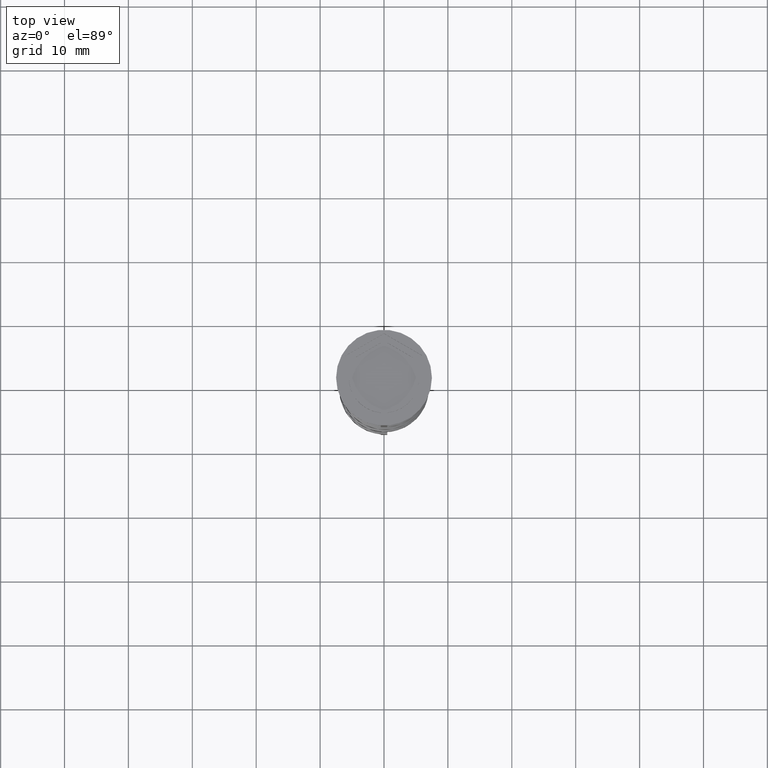
[diagram: clean part render]
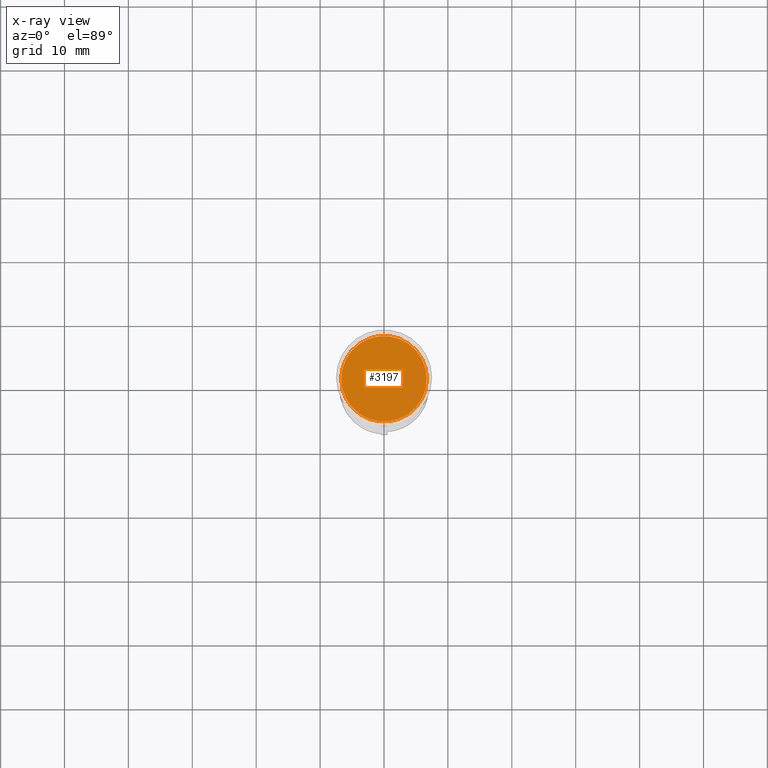
[diagram: x-ray — body ghosted, one internal face saturated and labeled with its STEP entity id]
A machine part, top view, then the same camera in x-ray: the body is ghosted and one INTERNAL B-rep face — a face not visible from any outside direction — is saturated and labeled: STEP entity #3197.
In plain terms, the highlighted planar face has unit normal (0, 0, -1).
Its self-contained STEP definition (entity closure, byte-faithful):
#57 = EDGE_CURVE ( 'NONE', #2261, #1136, #1935, .T. ) ;
#234 = FACE_OUTER_BOUND ( 'NONE', #2359, .T. ) ;
#391 = CARTESIAN_POINT ( 'NONE',  ( 0.000000000000000000, 0.000000000000000000, -10.50000000000000178 ) ) ;
#801 = CARTESIAN_POINT ( 'NONE',  ( 0.000000000000000000, 0.000000000000000000, -10.50000000000000178 ) ) ;
#815 = CIRCLE ( 'NONE', #1688, 6.700000000000001066 ) ;
#1090 = EDGE_CURVE ( 'NONE', #1136, #2261, #815, .T. ) ;
#1093 = PLANE ( 'NONE',  #2896 ) ;
#1136 = VERTEX_POINT ( 'NONE', #2478 ) ;
#1354 = DIRECTION ( 'NONE',  ( -1.000000000000000000, 0.000000000000000000, -0.000000000000000000 ) ) ;
#1553 = DIRECTION ( 'NONE',  ( -0.000000000000000000, -0.000000000000000000, 1.000000000000000000 ) ) ;
#1688 = AXIS2_PLACEMENT_3D ( 'NONE', #3398, #3376, #2761 ) ;
#1935 = CIRCLE ( 'NONE', #2219, 6.700000000000001066 ) ;
#2219 = AXIS2_PLACEMENT_3D ( 'NONE', #391, #1553, #2608 ) ;
#2261 = VERTEX_POINT ( 'NONE', #2799 ) ;
#2359 = EDGE_LOOP ( 'NONE', ( #3176, #3490 ) ) ;
#2478 = CARTESIAN_POINT ( 'NONE',  ( -6.700000000000001066, 0.000000000000000000, -10.50000000000000178 ) ) ;
#2608 = DIRECTION ( 'NONE',  ( -1.000000000000000000, 0.000000000000000000, 0.000000000000000000 ) ) ;
#2761 = DIRECTION ( 'NONE',  ( -1.000000000000000000, 0.000000000000000000, 0.000000000000000000 ) ) ;
#2799 = CARTESIAN_POINT ( 'NONE',  ( 6.700000000000001066, 8.388830574159370862E-16, -10.50000000000000178 ) ) ;
#2896 = AXIS2_PLACEMENT_3D ( 'NONE', #801, #3593, #1354 ) ;
#3176 = ORIENTED_EDGE ( 'NONE', *, *, #1090, .T. ) ;
#3197 = ADVANCED_FACE ( 'NONE', ( #234 ), #1093, .F. ) ;
#3376 = DIRECTION ( 'NONE',  ( -0.000000000000000000, -0.000000000000000000, 1.000000000000000000 ) ) ;
#3398 = CARTESIAN_POINT ( 'NONE',  ( 0.000000000000000000, 0.000000000000000000, -10.50000000000000178 ) ) ;
#3490 = ORIENTED_EDGE ( 'NONE', *, *, #57, .T. ) ;
#3593 = DIRECTION ( 'NONE',  ( 0.000000000000000000, 0.000000000000000000, -1.000000000000000000 ) ) ;